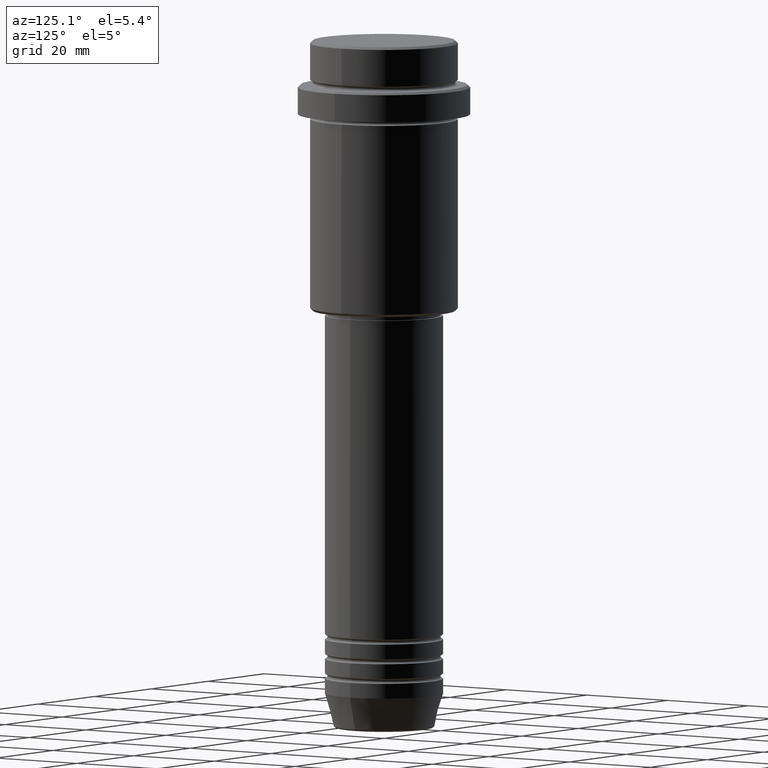
[diagram: clean part render]
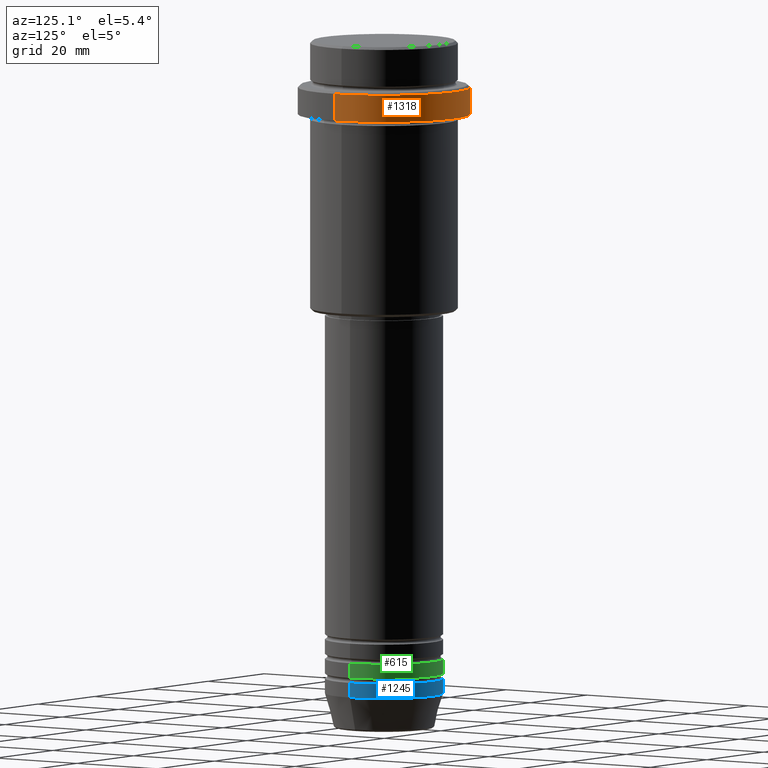
[diagram: same view with three faces highlighted in distinct colors, each labeled with its STEP entity id]
A machine part, auxiliary view with three faces highlighted in distinct colors.
Their STEP definitions:

[orange] entity #1318 — the highlighted cylindrical surface (partial cylindrical patch) has radius 17.5 mm, axis along (-0, -0, 1).
#81 = EDGE_CURVE ( 'NONE', #635, #290, #360, .T. ) ;
#156 = EDGE_CURVE ( 'NONE', #635, #406, #1282, .T. ) ;
#228 = VECTOR ( 'NONE', #456, 1000.000000000000000 ) ;
#290 = VERTEX_POINT ( 'NONE', #1291 ) ;
#323 = AXIS2_PLACEMENT_3D ( 'NONE', #700, #380, #923 ) ;
#360 = LINE ( 'NONE', #1120, #228 ) ;
#380 = DIRECTION ( 'NONE',  ( -0.000000000000000000, -0.000000000000000000, 1.000000000000000000 ) ) ;
#385 = DIRECTION ( 'NONE',  ( 1.000000000000000000, 0.000000000000000000, 0.000000000000000000 ) ) ;
#398 = CARTESIAN_POINT ( 'NONE',  ( 0.000000000000000000, 0.000000000000000000, -9.500000000000000000 ) ) ;
#406 = VERTEX_POINT ( 'NONE', #653 ) ;
#440 = AXIS2_PLACEMENT_3D ( 'NONE', #1104, #835, #385 ) ;
#456 = DIRECTION ( 'NONE',  ( -0.000000000000000000, -0.000000000000000000, 1.000000000000000000 ) ) ;
#495 = CARTESIAN_POINT ( 'NONE',  ( -17.50000000000000000, 2.143131898507868248E-15, -9.500000000000000000 ) ) ;
#570 = AXIS2_PLACEMENT_3D ( 'NONE', #398, #837, #1248 ) ;
#585 = EDGE_CURVE ( 'NONE', #406, #1022, #628, .T. ) ;
#614 = CYLINDRICAL_SURFACE ( 'NONE', #323, 17.50000000000000000 ) ;
#628 = LINE ( 'NONE', #726, #921 ) ;
#635 = VERTEX_POINT ( 'NONE', #1207 ) ;
#653 = CARTESIAN_POINT ( 'NONE',  ( -17.50000000000000000, 2.143131898507868248E-15, -15.00000000000000000 ) ) ;
#700 = CARTESIAN_POINT ( 'NONE',  ( 0.000000000000000000, 0.000000000000000000, 0.000000000000000000 ) ) ;
#726 = CARTESIAN_POINT ( 'NONE',  ( -17.50000000000000000, 2.143131898507868248E-15, 0.000000000000000000 ) ) ;
#835 = DIRECTION ( 'NONE',  ( -0.000000000000000000, -0.000000000000000000, 1.000000000000000000 ) ) ;
#837 = DIRECTION ( 'NONE',  ( 0.000000000000000000, 0.000000000000000000, -1.000000000000000000 ) ) ;
#921 = VECTOR ( 'NONE', #1078, 1000.000000000000000 ) ;
#923 = DIRECTION ( 'NONE',  ( 1.000000000000000000, 0.000000000000000000, 0.000000000000000000 ) ) ;
#1022 = VERTEX_POINT ( 'NONE', #495 ) ;
#1078 = DIRECTION ( 'NONE',  ( -0.000000000000000000, -0.000000000000000000, 1.000000000000000000 ) ) ;
#1104 = CARTESIAN_POINT ( 'NONE',  ( 0.000000000000000000, 0.000000000000000000, -15.00000000000000000 ) ) ;
#1120 = CARTESIAN_POINT ( 'NONE',  ( 17.50000000000000000, 0.000000000000000000, 0.000000000000000000 ) ) ;
#1138 = CIRCLE ( 'NONE', #570, 17.50000000000000000 ) ;
#1184 = ORIENTED_EDGE ( 'NONE', *, *, #1400, .T. ) ;
#1207 = CARTESIAN_POINT ( 'NONE',  ( 17.50000000000000000, 0.000000000000000000, -15.00000000000000000 ) ) ;
#1248 = DIRECTION ( 'NONE',  ( 1.000000000000000000, 0.000000000000000000, 0.000000000000000000 ) ) ;
#1282 = CIRCLE ( 'NONE', #440, 17.50000000000000000 ) ;
#1291 = CARTESIAN_POINT ( 'NONE',  ( 17.50000000000000000, 0.000000000000000000, -9.500000000000000000 ) ) ;
#1301 = ORIENTED_EDGE ( 'NONE', *, *, #81, .F. ) ;
#1318 = ADVANCED_FACE ( 'NONE', ( #1371 ), #614, .T. ) ;
#1328 = EDGE_LOOP ( 'NONE', ( #1384, #1362, #1184, #1301 ) ) ;
#1362 = ORIENTED_EDGE ( 'NONE', *, *, #585, .T. ) ;
#1371 = FACE_OUTER_BOUND ( 'NONE', #1328, .T. ) ;
#1384 = ORIENTED_EDGE ( 'NONE', *, *, #156, .T. ) ;
#1400 = EDGE_CURVE ( 'NONE', #1022, #290, #1138, .T. ) ;

[blue] entity #1245 — the highlighted cylindrical surface (partial cylindrical patch) has radius 12 mm, axis along (-0, -0, 1).
#8 = EDGE_CURVE ( 'NONE', #496, #1055, #1320, .T. ) ;
#22 = CYLINDRICAL_SURFACE ( 'NONE', #569, 12.00000000000000000 ) ;
#69 = EDGE_CURVE ( 'NONE', #1220, #496, #150, .T. ) ;
#98 = DIRECTION ( 'NONE',  ( -0.000000000000000000, -0.000000000000000000, 1.000000000000000000 ) ) ;
#114 = DIRECTION ( 'NONE',  ( -0.000000000000000000, -0.000000000000000000, 1.000000000000000000 ) ) ;
#133 = CARTESIAN_POINT ( 'NONE',  ( -12.00000000000000000, 1.469576158976823947E-15, -133.0000000000000000 ) ) ;
#150 = LINE ( 'NONE', #579, #851 ) ;
#251 = VECTOR ( 'NONE', #292, 1000.000000000000000 ) ;
#264 = EDGE_CURVE ( 'NONE', #1220, #1235, #460, .T. ) ;
#268 = ORIENTED_EDGE ( 'NONE', *, *, #264, .T. ) ;
#292 = DIRECTION ( 'NONE',  ( -0.000000000000000000, -0.000000000000000000, 1.000000000000000000 ) ) ;
#329 = CARTESIAN_POINT ( 'NONE',  ( 0.000000000000000000, 0.000000000000000000, -130.0000000000000000 ) ) ;
#362 = CARTESIAN_POINT ( 'NONE',  ( 12.00000000000000000, 0.000000000000000000, -130.0000000000000000 ) ) ;
#422 = AXIS2_PLACEMENT_3D ( 'NONE', #891, #1254, #1354 ) ;
#434 = EDGE_LOOP ( 'NONE', ( #268, #1348, #1294, #1290 ) ) ;
#460 = CIRCLE ( 'NONE', #422, 12.00000000000000000 ) ;
#496 = VERTEX_POINT ( 'NONE', #362 ) ;
#511 = CARTESIAN_POINT ( 'NONE',  ( -12.00000000000000000, 1.469576158976823947E-15, -130.0000000000000000 ) ) ;
#542 = DIRECTION ( 'NONE',  ( 1.000000000000000000, 0.000000000000000000, 0.000000000000000000 ) ) ;
#569 = AXIS2_PLACEMENT_3D ( 'NONE', #1090, #114, #1334 ) ;
#579 = CARTESIAN_POINT ( 'NONE',  ( 12.00000000000000000, 0.000000000000000000, 0.000000000000000000 ) ) ;
#599 = DIRECTION ( 'NONE',  ( -0.000000000000000000, -0.000000000000000000, 1.000000000000000000 ) ) ;
#718 = CARTESIAN_POINT ( 'NONE',  ( -12.00000000000000000, 1.469576158976823947E-15, 0.000000000000000000 ) ) ;
#851 = VECTOR ( 'NONE', #599, 1000.000000000000000 ) ;
#887 = CARTESIAN_POINT ( 'NONE',  ( 12.00000000000000000, 0.000000000000000000, -133.0000000000000000 ) ) ;
#891 = CARTESIAN_POINT ( 'NONE',  ( 0.000000000000000000, 0.000000000000000000, -133.0000000000000000 ) ) ;
#1055 = VERTEX_POINT ( 'NONE', #511 ) ;
#1090 = CARTESIAN_POINT ( 'NONE',  ( 0.000000000000000000, 0.000000000000000000, 0.000000000000000000 ) ) ;
#1220 = VERTEX_POINT ( 'NONE', #887 ) ;
#1222 = AXIS2_PLACEMENT_3D ( 'NONE', #329, #98, #542 ) ;
#1235 = VERTEX_POINT ( 'NONE', #133 ) ;
#1245 = ADVANCED_FACE ( 'NONE', ( #1411 ), #22, .T. ) ;
#1254 = DIRECTION ( 'NONE',  ( -0.000000000000000000, -0.000000000000000000, 1.000000000000000000 ) ) ;
#1290 = ORIENTED_EDGE ( 'NONE', *, *, #69, .F. ) ;
#1294 = ORIENTED_EDGE ( 'NONE', *, *, #8, .F. ) ;
#1320 = CIRCLE ( 'NONE', #1222, 12.00000000000000000 ) ;
#1334 = DIRECTION ( 'NONE',  ( 1.000000000000000000, 0.000000000000000000, 0.000000000000000000 ) ) ;
#1338 = EDGE_CURVE ( 'NONE', #1235, #1055, #1355, .T. ) ;
#1348 = ORIENTED_EDGE ( 'NONE', *, *, #1338, .T. ) ;
#1354 = DIRECTION ( 'NONE',  ( 1.000000000000000000, 0.000000000000000000, 0.000000000000000000 ) ) ;
#1355 = LINE ( 'NONE', #718, #251 ) ;
#1411 = FACE_OUTER_BOUND ( 'NONE', #434, .T. ) ;

[green] entity #615 — the highlighted cylindrical surface (partial cylindrical patch) has radius 12 mm, axis along (-0, -0, 1).
#79 = EDGE_CURVE ( 'NONE', #910, #525, #909, .T. ) ;
#83 = CARTESIAN_POINT ( 'NONE',  ( 12.00000000000000000, 0.000000000000000000, 0.000000000000000000 ) ) ;
#176 = CARTESIAN_POINT ( 'NONE',  ( 12.00000000000000000, 0.000000000000000000, -128.9999999999998863 ) ) ;
#262 = EDGE_CURVE ( 'NONE', #737, #525, #896, .T. ) ;
#318 = CARTESIAN_POINT ( 'NONE',  ( 0.000000000000000000, 0.000000000000000000, 0.000000000000000000 ) ) ;
#347 = CARTESIAN_POINT ( 'NONE',  ( -12.00000000000000000, 1.469576158976823947E-15, 0.000000000000000000 ) ) ;
#390 = AXIS2_PLACEMENT_3D ( 'NONE', #1211, #821, #1263 ) ;
#402 = LINE ( 'NONE', #83, #1369 ) ;
#413 = CARTESIAN_POINT ( 'NONE',  ( 0.000000000000000000, 0.000000000000000000, -128.9999999999998863 ) ) ;
#450 = ORIENTED_EDGE ( 'NONE', *, *, #262, .F. ) ;
#523 = EDGE_CURVE ( 'NONE', #1333, #737, #402, .T. ) ;
#525 = VERTEX_POINT ( 'NONE', #1364 ) ;
#615 = ADVANCED_FACE ( 'NONE', ( #949 ), #866, .T. ) ;
#720 = DIRECTION ( 'NONE',  ( -0.000000000000000000, -0.000000000000000000, 1.000000000000000000 ) ) ;
#723 = EDGE_LOOP ( 'NONE', ( #1039, #789, #450, #1125 ) ) ;
#737 = VERTEX_POINT ( 'NONE', #803 ) ;
#746 = DIRECTION ( 'NONE',  ( -0.000000000000000000, -0.000000000000000000, 1.000000000000000000 ) ) ;
#754 = CARTESIAN_POINT ( 'NONE',  ( -12.00000000000000000, 1.469576158976823947E-15, -128.9999999999998863 ) ) ;
#789 = ORIENTED_EDGE ( 'NONE', *, *, #79, .T. ) ;
#803 = CARTESIAN_POINT ( 'NONE',  ( 12.00000000000000000, 0.000000000000000000, -125.9999999999998863 ) ) ;
#804 = DIRECTION ( 'NONE',  ( 1.000000000000000000, 0.000000000000000000, 0.000000000000000000 ) ) ;
#821 = DIRECTION ( 'NONE',  ( -0.000000000000000000, -0.000000000000000000, 1.000000000000000000 ) ) ;
#866 = CYLINDRICAL_SURFACE ( 'NONE', #1028, 12.00000000000000000 ) ;
#896 = CIRCLE ( 'NONE', #390, 12.00000000000000000 ) ;
#909 = LINE ( 'NONE', #347, #1341 ) ;
#910 = VERTEX_POINT ( 'NONE', #754 ) ;
#949 = FACE_OUTER_BOUND ( 'NONE', #723, .T. ) ;
#968 = CIRCLE ( 'NONE', #1281, 12.00000000000000000 ) ;
#1002 = EDGE_CURVE ( 'NONE', #1333, #910, #968, .T. ) ;
#1028 = AXIS2_PLACEMENT_3D ( 'NONE', #318, #1214, #1195 ) ;
#1039 = ORIENTED_EDGE ( 'NONE', *, *, #1002, .T. ) ;
#1125 = ORIENTED_EDGE ( 'NONE', *, *, #523, .F. ) ;
#1195 = DIRECTION ( 'NONE',  ( 1.000000000000000000, 0.000000000000000000, 0.000000000000000000 ) ) ;
#1211 = CARTESIAN_POINT ( 'NONE',  ( 0.000000000000000000, 0.000000000000000000, -125.9999999999998863 ) ) ;
#1214 = DIRECTION ( 'NONE',  ( -0.000000000000000000, -0.000000000000000000, 1.000000000000000000 ) ) ;
#1263 = DIRECTION ( 'NONE',  ( 1.000000000000000000, 0.000000000000000000, 0.000000000000000000 ) ) ;
#1281 = AXIS2_PLACEMENT_3D ( 'NONE', #413, #720, #804 ) ;
#1333 = VERTEX_POINT ( 'NONE', #176 ) ;
#1335 = DIRECTION ( 'NONE',  ( -0.000000000000000000, -0.000000000000000000, 1.000000000000000000 ) ) ;
#1341 = VECTOR ( 'NONE', #1335, 1000.000000000000000 ) ;
#1364 = CARTESIAN_POINT ( 'NONE',  ( -12.00000000000000000, 1.469576158976823947E-15, -125.9999999999998863 ) ) ;
#1369 = VECTOR ( 'NONE', #746, 1000.000000000000000 ) ;